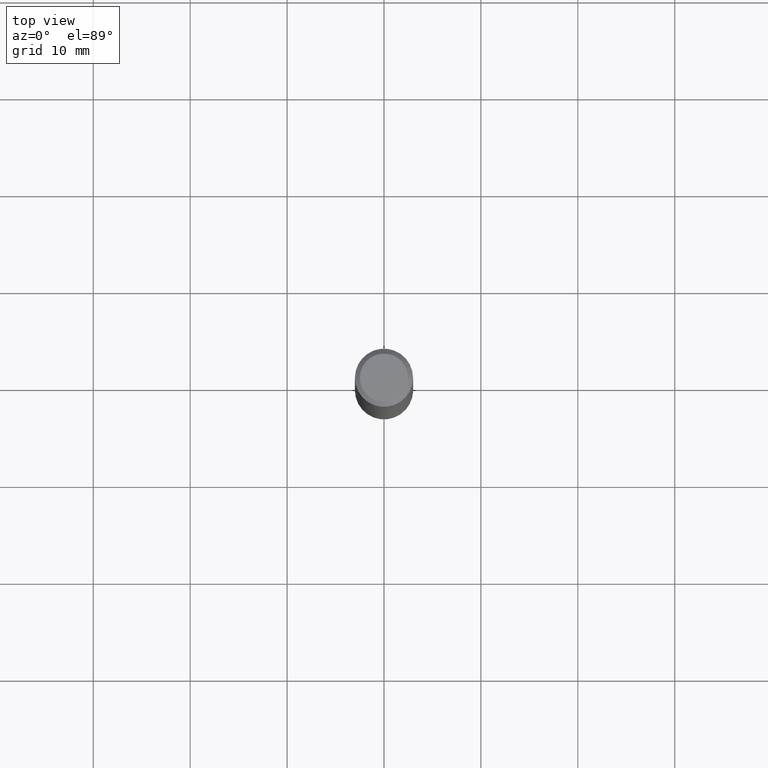
[diagram: clean part render]
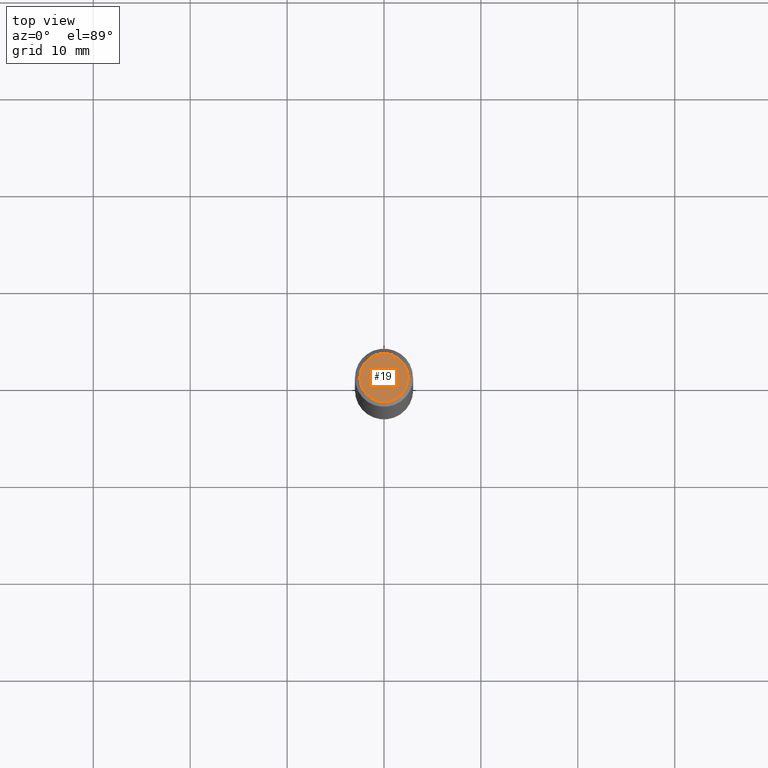
[diagram: same view with one face highlighted and labeled with its STEP entity id]
A machine part, top view. The second image highlights one B-rep face of the part: STEP entity #19.
In plain terms, the highlighted planar face has unit normal (0, -0, -1).
Its self-contained STEP definition (entity closure, byte-faithful):
#4 = CARTESIAN_POINT ( 'NONE',  ( 6.850286386810212718E-16, 0.09809999999999979847, -3.467828318306122952E-16 ) ) ;
#19 = ADVANCED_FACE ( 'NONE', ( #255 ), #293, .F. ) ;
#24 = ORIENTED_EDGE ( 'NONE', *, *, #170, .T. ) ;
#117 = ORIENTED_EDGE ( 'NONE', *, *, #263, .T. ) ;
#122 = CARTESIAN_POINT ( 'NONE',  ( 2.087702828670439639E-46, -2.980686340760894400E-32, -8.537024980200822558E-18 ) ) ;
#128 = DIRECTION ( 'NONE',  ( 1.000000000000000000, -6.982962677686267499E-15, 4.876195163481342132E-29 ) ) ;
#131 = CARTESIAN_POINT ( 'NONE',  ( 0.09809999999999979847, -7.765346469475326737E-16, -8.537024980195711910E-18 ) ) ;
#137 = VERTEX_POINT ( 'NONE', #244 ) ;
#154 = CIRCLE ( 'NONE', #195, 0.09809999999999979847 ) ;
#170 = EDGE_CURVE ( 'NONE', #231, #137, #253, .T. ) ;
#178 = DIRECTION ( 'NONE',  ( 2.438088387897960049E-29, -3.491481338843145188E-15, -1.000000000000000000 ) ) ;
#195 = AXIS2_PLACEMENT_3D ( 'NONE', #341, #307, #248 ) ;
#217 = DIRECTION ( 'NONE',  ( -2.445468806185136597E-29, 3.491481338843145583E-15, 1.000000000000000000 ) ) ;
#229 = DIRECTION ( 'NONE',  ( -1.000000000000000000, 6.982962677686265922E-15, -4.876176775795935793E-29 ) ) ;
#231 = VERTEX_POINT ( 'NONE', #131 ) ;
#244 = CARTESIAN_POINT ( 'NONE',  ( -0.09809999999999979847, 7.199434520694525264E-16, -8.537024980205735990E-18 ) ) ;
#248 = DIRECTION ( 'NONE',  ( 1.000000000000000000, -6.982962677686267499E-15, 4.876195163481342132E-29 ) ) ;
#253 = CIRCLE ( 'NONE', #318, 0.09809999999999979847 ) ;
#255 = FACE_OUTER_BOUND ( 'NONE', #353, .T. ) ;
#263 = EDGE_CURVE ( 'NONE', #137, #231, #154, .T. ) ;
#293 = PLANE ( 'NONE',  #347 ) ;
#307 = DIRECTION ( 'NONE',  ( -2.445468806185136597E-29, 3.491481338843145583E-15, 1.000000000000000000 ) ) ;
#318 = AXIS2_PLACEMENT_3D ( 'NONE', #122, #217, #128 ) ;
#341 = CARTESIAN_POINT ( 'NONE',  ( 2.087702828670439639E-46, -2.980686340760894400E-32, -8.537024980200822558E-18 ) ) ;
#347 = AXIS2_PLACEMENT_3D ( 'NONE', #4, #178, #229 ) ;
#353 = EDGE_LOOP ( 'NONE', ( #117, #24 ) ) ;